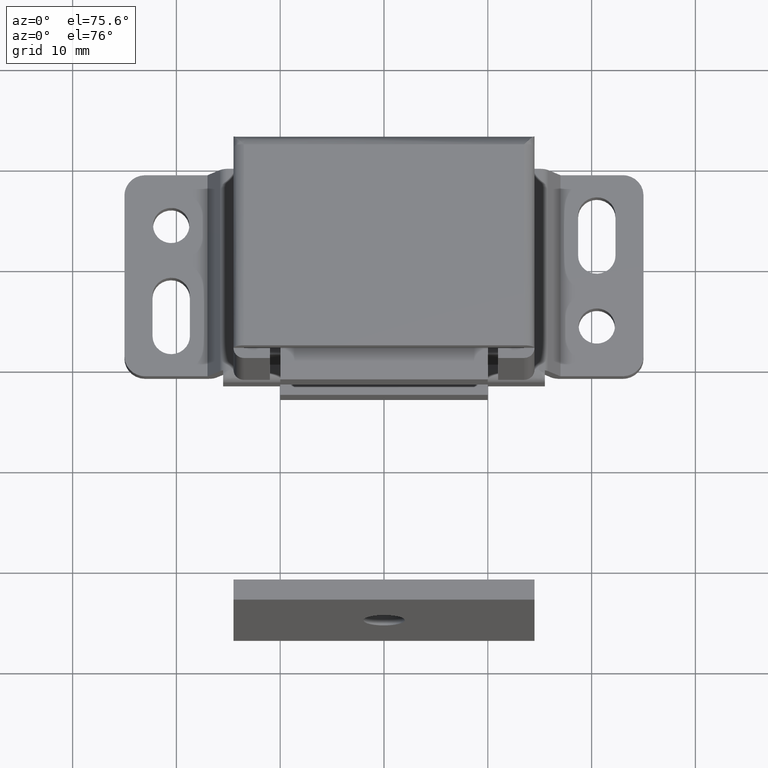
[diagram: clean part render]
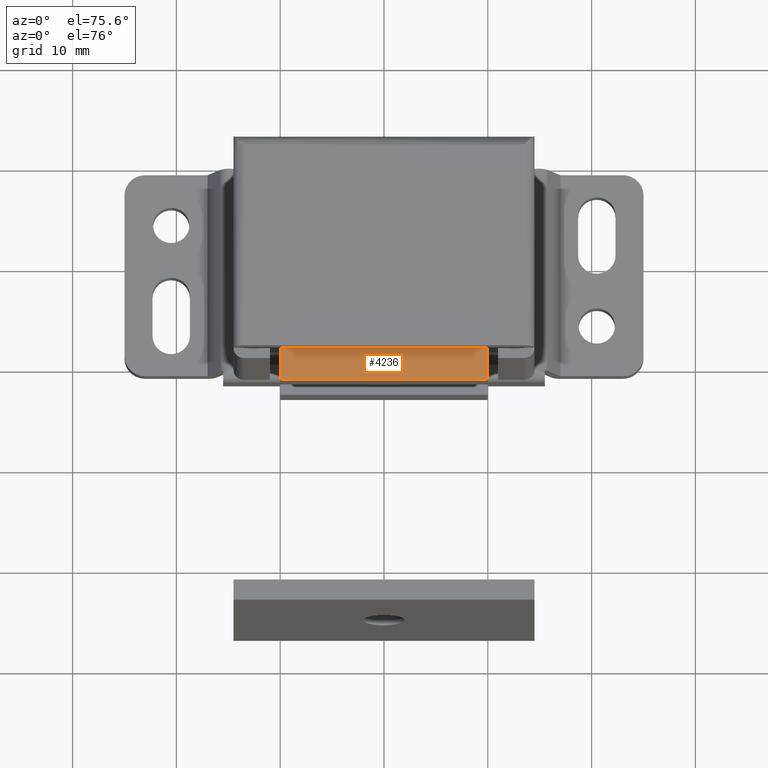
[diagram: same view with one face highlighted and labeled with its STEP entity id]
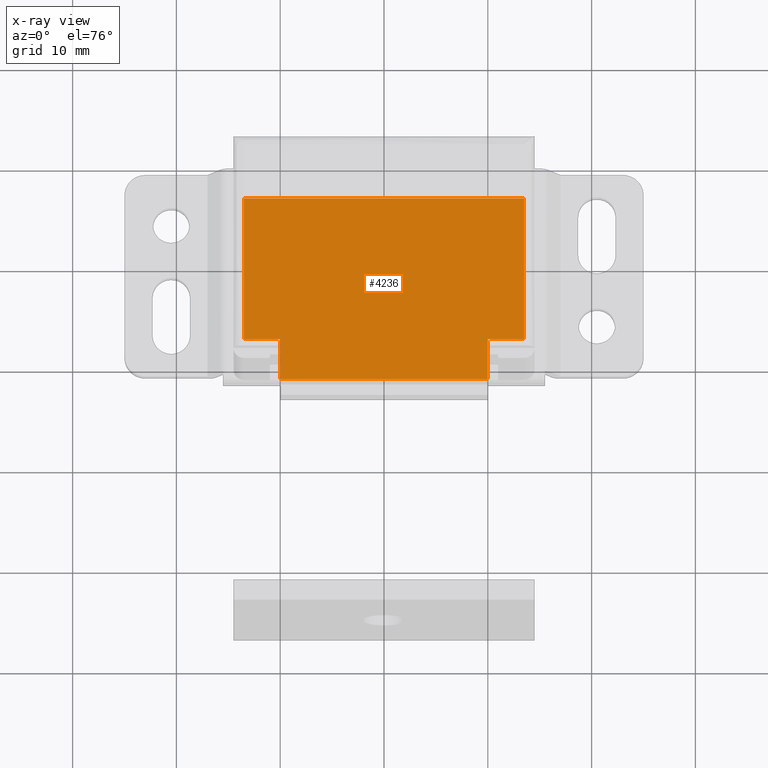
[diagram: x-ray of the same camera — body ghosted, the highlighted face saturated]
A machine part, auxiliary view. The second image highlights one B-rep face of the part: STEP entity #4236.
The next image is the same camera in x-ray: the body ghosted, the highlighted face saturated — about 0% of this face is hidden behind the body in this view.
In plain terms, the highlighted face is a freeform B-spline surface patch.
Its self-contained STEP definition (entity closure, byte-faithful):
#4173=CARTESIAN_POINT('',(-14.848649947668759,-5.100900034887492,11.499999999999799));
#4174=CARTESIAN_POINT('',(14.848650671865190,-5.100900034887492,11.499999999999799));
#4175=CARTESIAN_POINT('',(-14.848649947668759,-24.899100447910129,11.499999999999799));
#4176=CARTESIAN_POINT('',(14.848650671865190,-24.899100447910129,11.499999999999799));
#4177=B_SPLINE_SURFACE_WITH_KNOTS('',1,1,((#4173,#4175),(#4174,#4176)),.UNSPECIFIED.,.F.,.F.,.U.,(2,2),(2,2),(0.0,29.697300619533959),(0.0,19.798200413022641),.UNSPECIFIED.);
#4178=CARTESIAN_POINT('',(10.0,-20.0,11.499999999999840));
#4179=VERTEX_POINT('',#4178);
#4180=CARTESIAN_POINT('',(10.0,-24.0,11.499999999999840));
#4181=VERTEX_POINT('',#4180);
#4182=CARTESIAN_POINT('',(10.0,-20.0,11.499999999999840));
#4183=CARTESIAN_POINT('',(10.0,-24.0,11.499999999999840));
#4184=QUASI_UNIFORM_CURVE('',1,(#4182,#4183),.UNSPECIFIED.,.F.,.U.);
#4185=EDGE_CURVE('',#4179,#4181,#4184,.T.);
#4186=ORIENTED_EDGE('',*,*,#4185,.F.);
#4187=CARTESIAN_POINT('',(13.500000000000000,-20.0,11.499999999999840));
#4188=VERTEX_POINT('',#4187);
#4189=CARTESIAN_POINT('',(13.500000000000000,-20.0,11.499999999999840));
#4190=CARTESIAN_POINT('',(10.0,-20.0,11.499999999999840));
#4191=QUASI_UNIFORM_CURVE('',1,(#4189,#4190),.UNSPECIFIED.,.F.,.U.);
#4192=EDGE_CURVE('',#4188,#4179,#4191,.T.);
#4193=ORIENTED_EDGE('',*,*,#4192,.F.);
#4194=CARTESIAN_POINT('',(13.500000000000000,-6.0,11.499999999999840));
#4195=VERTEX_POINT('',#4194);
#4196=CARTESIAN_POINT('',(13.500000000000000,-6.0,11.499999999999840));
#4197=CARTESIAN_POINT('',(13.500000000000000,-20.0,11.499999999999840));
#4198=QUASI_UNIFORM_CURVE('',1,(#4196,#4197),.UNSPECIFIED.,.F.,.U.);
#4199=EDGE_CURVE('',#4195,#4188,#4198,.T.);
#4200=ORIENTED_EDGE('',*,*,#4199,.F.);
#4201=CARTESIAN_POINT('',(-13.500000000000000,-6.0,11.499999999999840));
#4202=VERTEX_POINT('',#4201);
#4203=CARTESIAN_POINT('',(-13.500000000000000,-6.0,11.499999999999840));
#4204=CARTESIAN_POINT('',(13.500000000000000,-6.0,11.499999999999840));
#4205=QUASI_UNIFORM_CURVE('',1,(#4203,#4204),.UNSPECIFIED.,.F.,.U.);
#4206=EDGE_CURVE('',#4202,#4195,#4205,.T.);
#4207=ORIENTED_EDGE('',*,*,#4206,.F.);
#4208=CARTESIAN_POINT('',(-13.500000000000000,-20.0,11.499999999999840));
#4209=VERTEX_POINT('',#4208);
#4210=CARTESIAN_POINT('',(-13.500000000000000,-20.0,11.499999999999840));
#4211=CARTESIAN_POINT('',(-13.500000000000000,-6.0,11.499999999999840));
#4212=QUASI_UNIFORM_CURVE('',1,(#4210,#4211),.UNSPECIFIED.,.F.,.U.);
#4213=EDGE_CURVE('',#4209,#4202,#4212,.T.);
#4214=ORIENTED_EDGE('',*,*,#4213,.F.);
#4215=CARTESIAN_POINT('',(-10.0,-20.0,11.499999999999840));
#4216=VERTEX_POINT('',#4215);
#4217=CARTESIAN_POINT('',(-10.0,-20.0,11.499999999999840));
#4218=CARTESIAN_POINT('',(-13.500000000000000,-20.0,11.499999999999840));
#4219=QUASI_UNIFORM_CURVE('',1,(#4217,#4218),.UNSPECIFIED.,.F.,.U.);
#4220=EDGE_CURVE('',#4216,#4209,#4219,.T.);
#4221=ORIENTED_EDGE('',*,*,#4220,.F.);
#4222=CARTESIAN_POINT('',(-10.0,-24.0,11.499999999999840));
#4223=VERTEX_POINT('',#4222);
#4224=CARTESIAN_POINT('',(-10.0,-24.0,11.499999999999840));
#4225=CARTESIAN_POINT('',(-10.0,-20.0,11.499999999999840));
#4226=QUASI_UNIFORM_CURVE('',1,(#4224,#4225),.UNSPECIFIED.,.F.,.U.);
#4227=EDGE_CURVE('',#4223,#4216,#4226,.T.);
#4228=ORIENTED_EDGE('',*,*,#4227,.F.);
#4229=CARTESIAN_POINT('',(10.0,-24.0,11.499999999999840));
#4230=CARTESIAN_POINT('',(-10.0,-24.0,11.499999999999840));
#4231=QUASI_UNIFORM_CURVE('',1,(#4229,#4230),.UNSPECIFIED.,.F.,.U.);
#4232=EDGE_CURVE('',#4181,#4223,#4231,.T.);
#4233=ORIENTED_EDGE('',*,*,#4232,.F.);
#4234=EDGE_LOOP('',(#4186,#4193,#4200,#4207,#4214,#4221,#4228,#4233));
#4235=FACE_OUTER_BOUND('',#4234,.T.);
#4236=ADVANCED_FACE('',(#4235),#4177,.F.);